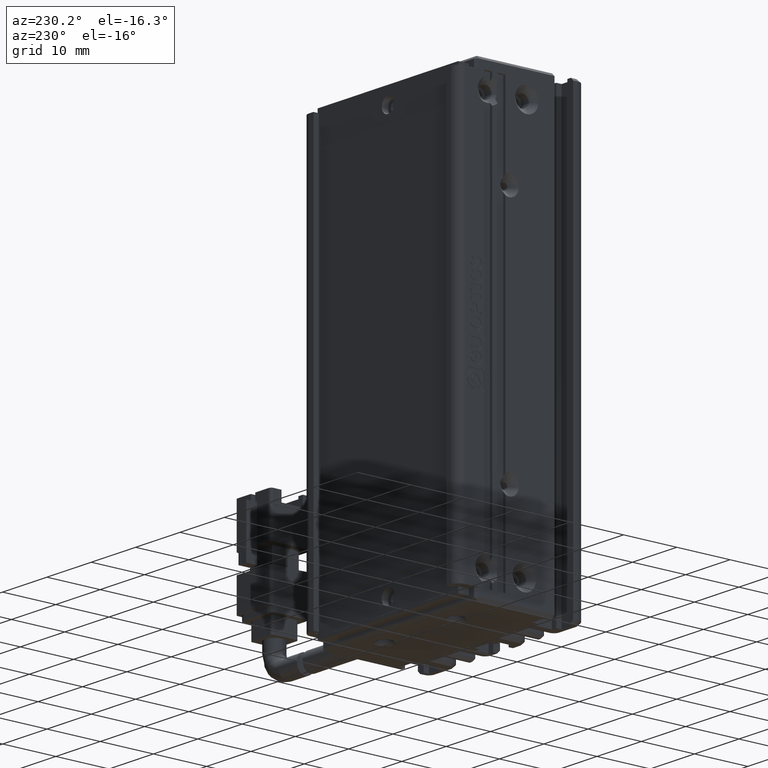
[diagram: clean part render]
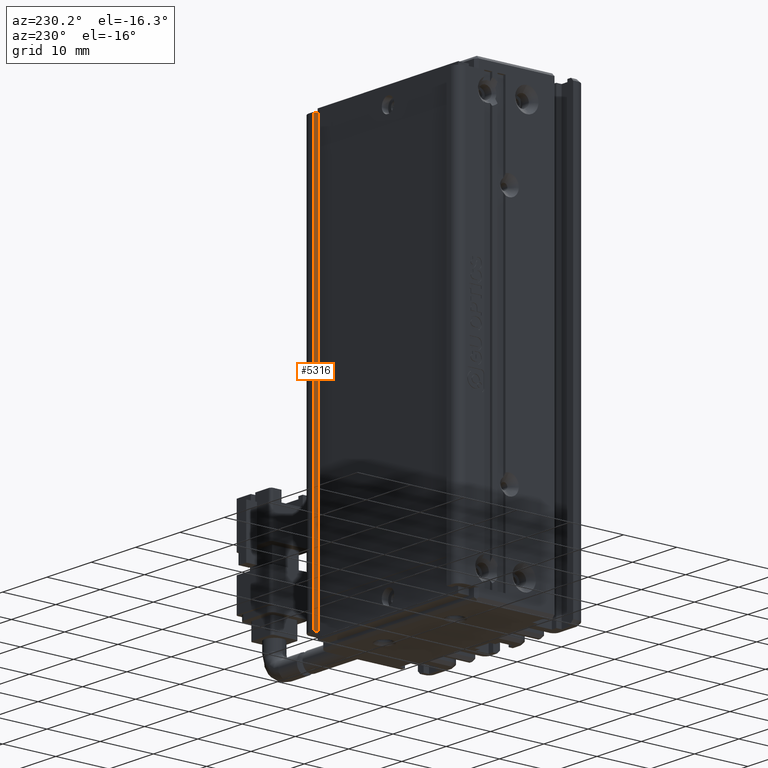
[diagram: same view with one face highlighted and labeled with its STEP entity id]
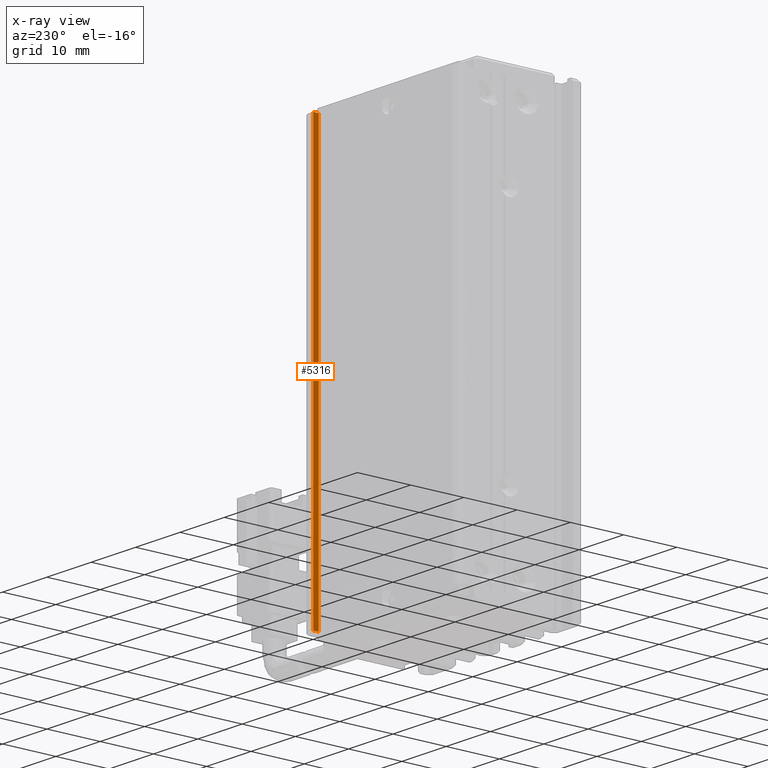
[diagram: x-ray of the same camera — body ghosted, the highlighted face saturated]
A machine part, auxiliary view. The second image highlights one B-rep face of the part: STEP entity #5316.
The next image is the same camera in x-ray: the body ghosted, the highlighted face saturated — about 0% of this face is hidden behind the body in this view.
In plain terms, the highlighted planar face has unit normal (-1, 0, 0).
Its self-contained STEP definition (entity closure, byte-faithful):
#272 = DIRECTION ( 'NONE',  ( -0.0000000000000000000, -0.0000000000000000000, -1.000000000000000000 ) ) ;
#410 = VERTEX_POINT ( 'NONE', #5061 ) ;
#1773 = VECTOR ( 'NONE', #16879, 1000.000000000000000 ) ;
#4640 = CARTESIAN_POINT ( 'NONE',  ( 55.92537974683542500, 33.99073232304837700, -154.0000000000000000 ) ) ;
#5061 = CARTESIAN_POINT ( 'NONE',  ( 55.92537974683542500, 33.99073232304837700, -76.00000000000001400 ) ) ;
#5316 = ADVANCED_FACE ( 'NONE', ( #19015 ), #34465, .T. ) ;
#7762 = CARTESIAN_POINT ( 'NONE',  ( 55.92537974683542500, 7.083797468354437600, -76.00000000000001400 ) ) ;
#11805 = CARTESIAN_POINT ( 'NONE',  ( 55.92537974683541800, 34.99073232304837700, -154.0000000000000000 ) ) ;
#11843 = CARTESIAN_POINT ( 'NONE',  ( 55.92537974683542500, 34.99073232304837700, -74.00000000000001400 ) ) ;
#14556 = LINE ( 'NONE', #23526, #32932 ) ;
#15143 = ORIENTED_EDGE ( 'NONE', *, *, #17449, .T. ) ;
#16879 = DIRECTION ( 'NONE',  ( -0.0000000000000000000, -1.000000000000000000, 0.0000000000000000000 ) ) ;
#17449 = EDGE_CURVE ( 'NONE', #410, #22673, #17489, .T. ) ;
#17489 = LINE ( 'NONE', #7762, #29857 ) ;
#17977 = DIRECTION ( 'NONE',  ( 0.0000000000000000000, -0.0000000000000000000, 1.000000000000000000 ) ) ;
#18392 = ORIENTED_EDGE ( 'NONE', *, *, #30031, .T. ) ;
#19015 = FACE_OUTER_BOUND ( 'NONE', #26299, .T. ) ;
#19467 = CARTESIAN_POINT ( 'NONE',  ( 55.92537974683542500, 7.083797468354437600, -154.0000000000000000 ) ) ;
#19625 = LINE ( 'NONE', #19467, #1773 ) ;
#21472 = VERTEX_POINT ( 'NONE', #4640 ) ;
#22673 = VERTEX_POINT ( 'NONE', #25210 ) ;
#23526 = CARTESIAN_POINT ( 'NONE',  ( 55.92537974683542500, 33.99073232304837700, -74.00000000000001400 ) ) ;
#25210 = CARTESIAN_POINT ( 'NONE',  ( 55.92537974683541800, 34.99073232304837700, -76.00000000000001400 ) ) ;
#26299 = EDGE_LOOP ( 'NONE', ( #18392, #36248, #15143, #36700 ) ) ;
#26528 = DIRECTION ( 'NONE',  ( -1.000000000000000000, 0.0000000000000000000, 0.0000000000000000000 ) ) ;
#26554 = AXIS2_PLACEMENT_3D ( 'NONE', #28721, #26528, #38050 ) ;
#28030 = EDGE_CURVE ( 'NONE', #22673, #33513, #30694, .T. ) ;
#28721 = CARTESIAN_POINT ( 'NONE',  ( 55.92537974683542500, 7.083797468354437600, -74.00000000000001400 ) ) ;
#29857 = VECTOR ( 'NONE', #34280, 1000.000000000000000 ) ;
#30031 = EDGE_CURVE ( 'NONE', #33513, #21472, #19625, .T. ) ;
#30057 = EDGE_CURVE ( 'NONE', #21472, #410, #14556, .T. ) ;
#30694 = LINE ( 'NONE', #11843, #36638 ) ;
#32932 = VECTOR ( 'NONE', #17977, 1000.000000000000000 ) ;
#33513 = VERTEX_POINT ( 'NONE', #11805 ) ;
#34280 = DIRECTION ( 'NONE',  ( 0.0000000000000000000, 1.000000000000000000, -0.0000000000000000000 ) ) ;
#34465 = PLANE ( 'NONE',  #26554 ) ;
#36248 = ORIENTED_EDGE ( 'NONE', *, *, #30057, .T. ) ;
#36638 = VECTOR ( 'NONE', #272, 1000.000000000000000 ) ;
#36700 = ORIENTED_EDGE ( 'NONE', *, *, #28030, .T. ) ;
#38050 = DIRECTION ( 'NONE',  ( 0.0000000000000000000, 0.0000000000000000000, 1.000000000000000000 ) ) ;